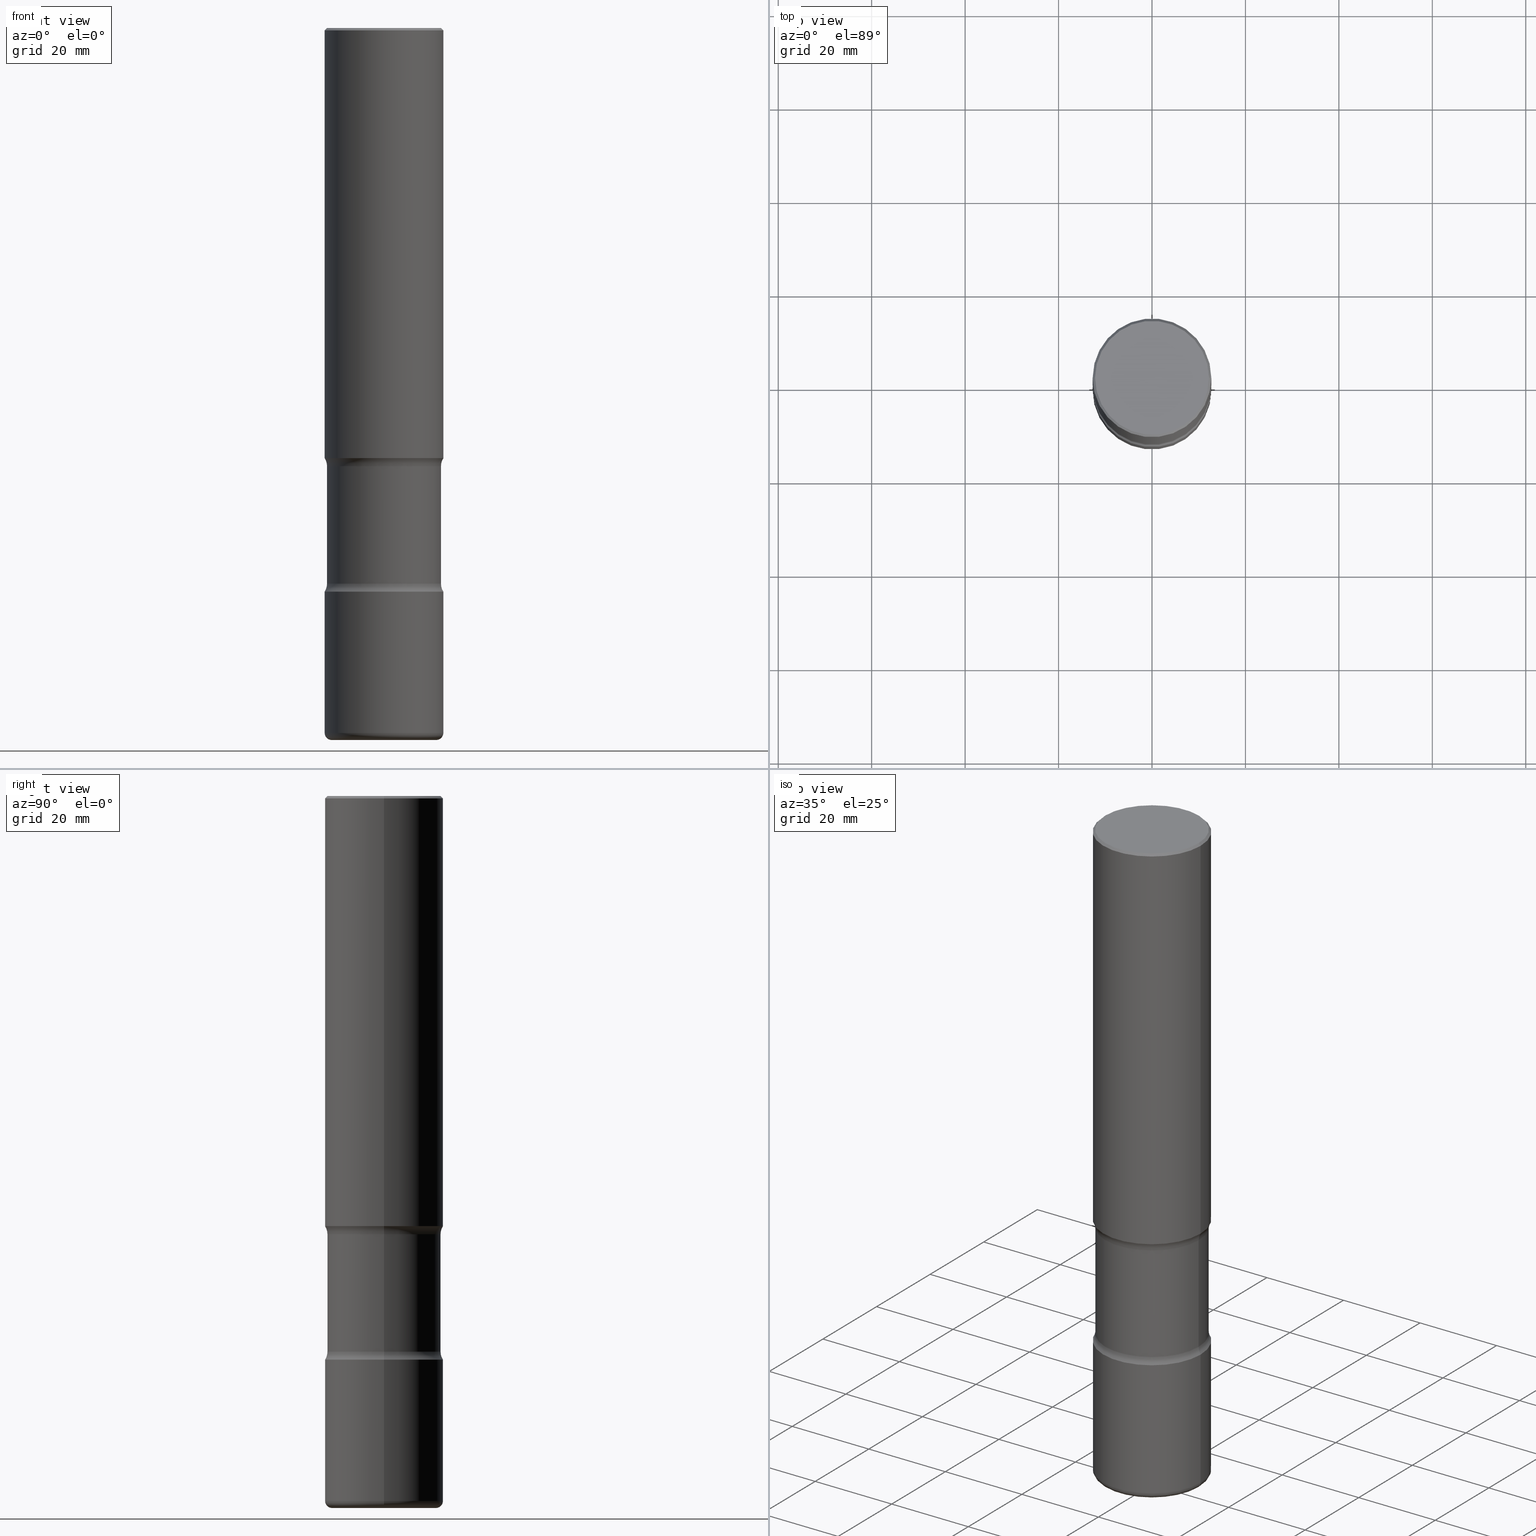
[diagram: canonical four-view strip — front | top / right | iso, engineering-drawing reading convention]
A machine part, canonical four-view strip (front | top / right | iso — engineering-drawing reading convention). The complete STEP part file that produces these views, byte-faithful:
ISO-10303-21;
HEADER;
FILE_DESCRIPTION (( 'STEP AP203' ),
    '1' );
FILE_NAME ('32804.STEP',
    '2023-03-11T07:03:03',
    ( '' ),
    ( '' ),
    'SwSTEP 2.0',
    'SolidWorks 2022',
    '' );
FILE_SCHEMA (( 'CONFIG_CONTROL_DESIGN' ));
ENDSEC;

DATA;
#1 = PRODUCT ( '32804', '32804', '', ( #398 ) ) ;
#2 = DIRECTION ( 'NONE',  ( -2.438088387897960049E-29, 3.491481338843145188E-15, 1.000000000000000000 ) ) ;
#3 = CYLINDRICAL_SURFACE ( 'NONE', #522, 0.4799999999999998712 ) ;
#4 = DIRECTION ( 'NONE',  ( -1.000000000000000000, 6.982962677686269866E-15, 0.000000000000000000 ) ) ;
#5 = ORIENTED_EDGE ( 'NONE', *, *, #573, .T. ) ;
#6 = CARTESIAN_POINT ( 'NONE',  ( 1.463950775264360017E-28, -2.090133719920166986E-14, -5.986380899898219532 ) ) ;
#7 = UNCERTAINTY_MEASURE_WITH_UNIT (LENGTH_MEASURE( 1.000000000000000082E-05 ), #694, 'distance_accuracy_value', 'NONE');
#8 = AXIS2_PLACEMENT_3D ( 'NONE', #536, #666, #166 ) ;
#9 = FACE_OUTER_BOUND ( 'NONE', #521, .T. ) ;
#10 = ORIENTED_EDGE ( 'NONE', *, *, #464, .T. ) ;
#11 = CC_DESIGN_PERSON_AND_ORGANIZATION_ASSIGNMENT ( #260, #28, ( #767 ) ) ;
#12 = DIRECTION ( 'NONE',  ( -1.000000000000000000, 6.982962677686266711E-15, 0.000000000000000000 ) ) ;
#13 = DIRECTION ( 'NONE',  ( -1.000000000000000000, 6.982962677686266711E-15, -4.883557194083112901E-29 ) ) ;
#14 = ORIENTED_EDGE ( 'NONE', *, *, #598, .F. ) ;
#15 = CARTESIAN_POINT ( 'NONE',  ( 1.467281283711081958E-28, -2.094888803305887271E-14, -6.000000000000000888 ) ) ;
#16 = ORIENTED_EDGE ( 'NONE', *, *, #340, .F. ) ;
#17 = FACE_OUTER_BOUND ( 'NONE', #574, .T. ) ;
#18 = EDGE_CURVE ( 'NONE', #211, #139, #303, .T. ) ;
#19 = CIRCLE ( 'NONE', #605, 0.4799999999999998157 ) ;
#20 = PERSON_AND_ORGANIZATION ( #769, #643 ) ;
#21 = EDGE_LOOP ( 'NONE', ( #402, #567, #328, #118 ) ) ;
#22 = CARTESIAN_POINT ( 'NONE',  ( -0.4799999999999999267, -1.299591048851595473E-14, -4.682176700168747985 ) ) ;
#23 = VERTEX_POINT ( 'NONE', #797 ) ;
#24 = CARTESIAN_POINT ( 'NONE',  ( 1.463950775264360017E-28, -2.090133719920166986E-14, -5.986380899898219532 ) ) ;
#25 = DIRECTION ( 'NONE',  ( -2.445468806185136597E-29, 3.491481338843145583E-15, 1.000000000000000000 ) ) ;
#26 = CIRCLE ( 'NONE', #743, 0.1250000000000001110 ) ;
#27 = ADVANCED_FACE ( 'NONE', ( #154 ), #164, .T. ) ;
#28 = PERSON_AND_ORGANIZATION_ROLE ( 'design_supplier' ) ;
#29 = EDGE_LOOP ( 'NONE', ( #129, #148, #123 ) ) ;
#30 = AXIS2_PLACEMENT_3D ( 'NONE', #563, #740, #105 ) ;
#31 = ORIENTED_EDGE ( 'NONE', *, *, #644, .T. ) ;
#32 = AXIS2_PLACEMENT_3D ( 'NONE', #119, #76, #179 ) ;
#33 = FACE_OUTER_BOUND ( 'NONE', #481, .T. ) ;
#34 = LOCAL_TIME ( 2, 3, 3.000000000000000000, #392 ) ;
#35 = ORIENTED_EDGE ( 'NONE', *, *, #533, .T. ) ;
#36 = FACE_BOUND ( 'NONE', #300, .T. ) ;
#37 = TOROIDAL_SURFACE ( 'NONE', #561, 0.6049999999999999822, 0.1250000000000000278 ) ;
#38 = DIRECTION ( 'NONE',  ( -2.445468806185136597E-29, 3.491481338843145583E-15, 1.000000000000000000 ) ) ;
#39 = EDGE_CURVE ( 'NONE', #792, #455, #149, .T. ) ;
#40 = PRODUCT_RELATED_PRODUCT_CATEGORY ( 'detail', '', ( #1 ) ) ;
#41 = CARTESIAN_POINT ( 'NONE',  ( 0.4400000000000000022, -2.381190273091024584E-14, -5.940000000000000391 ) ) ;
#42 = AXIS2_PLACEMENT_3D ( 'NONE', #443, #727, #351 ) ;
#43 = AXIS2_PLACEMENT_3D ( 'NONE', #259, #510, #65 ) ;
#44 = FACE_OUTER_BOUND ( 'NONE', #509, .T. ) ;
#45 = CARTESIAN_POINT ( 'NONE',  ( -0.6049999999999999822, -1.212304015380516982E-14, -4.682176700168747985 ) ) ;
#46 = ORIENTED_EDGE ( 'NONE', *, *, #278, .F. ) ;
#47 = EDGE_CURVE ( 'NONE', #505, #469, #634, .T. ) ;
#48 = ORIENTED_EDGE ( 'NONE', *, *, #682, .F. ) ;
#49 = EDGE_CURVE ( 'NONE', #469, #318, #614, .T. ) ;
#50 = TOROIDAL_SURFACE ( 'NONE', #577, 0.6049999999999999822, 0.1250000000000000278 ) ;
#51 = FACE_OUTER_BOUND ( 'NONE', #306, .T. ) ;
#52 = DIRECTION ( 'NONE',  ( 1.000000000000000000, -6.982962677686266711E-15, 0.000000000000000000 ) ) ;
#53 = LINE ( 'NONE', #370, #310 ) ;
#54 = VERTEX_POINT ( 'NONE', #160 ) ;
#55 = EDGE_CURVE ( 'NONE', #273, #332, #264, .T. ) ;
#56 = CIRCLE ( 'NONE', #347, 0.1250000000000000278 ) ;
#57 = AXIS2_PLACEMENT_3D ( 'NONE', #441, #311, #646 ) ;
#58 = FACE_OUTER_BOUND ( 'NONE', #612, .T. ) ;
#59 = PRODUCT_DEFINITION_SHAPE ( 'NONE', 'NONE',  #326 ) ;
#60 = ORIENTED_EDGE ( 'NONE', *, *, #545, .T. ) ;
#61 = DIRECTION ( 'NONE',  ( 2.438088387897960049E-29, -3.491481338843145188E-15, -1.000000000000000000 ) ) ;
#62 = DIRECTION ( 'NONE',  ( -2.445468806185136597E-29, 3.491481338843145583E-15, 1.000000000000000000 ) ) ;
#63 = CARTESIAN_POINT ( 'NONE',  ( 0.5000000000000000000, -1.608686885219216995E-14, -3.625000000000000888 ) ) ;
#64 = ORIENTED_EDGE ( 'NONE', *, *, #601, .T. ) ;
#65 = DIRECTION ( 'NONE',  ( 1.000000000000000000, -6.982962677686266711E-15, 4.876176775795935793E-29 ) ) ;
#66 = AXIS2_PLACEMENT_3D ( 'NONE', #156, #667, #671 ) ;
#67 = CARTESIAN_POINT ( 'NONE',  ( 0.6049999999999999822, -2.057242499380555159E-14, -4.682176700168747985 ) ) ;
#68 = EDGE_LOOP ( 'NONE', ( #772, #593 ) ) ;
#69 = DIRECTION ( 'NONE',  ( -0.9993908270190957621, 6.856857904024558837E-15, -0.03489949670250019204 ) ) ;
#70 = CARTESIAN_POINT ( 'NONE',  ( -0.4799999999999998712, -1.754951511391225995E-14, -5.986380899898219532 ) ) ;
#71 = VECTOR ( 'NONE', #69, 39.37007874015748143 ) ;
#72 = CARTESIAN_POINT ( 'NONE',  ( 1.145011706530952997E-28, -1.634773257380536149E-14, -4.682176700168747985 ) ) ;
#73 = ORIENTED_EDGE ( 'NONE', *, *, #167, .T. ) ;
#74 = LINE ( 'NONE', #183, #474 ) ;
#75 = ORIENTED_EDGE ( 'NONE', *, *, #274, .T. ) ;
#76 = DIRECTION ( 'NONE',  ( -2.445468806185136597E-29, 3.491481338843145583E-15, 1.000000000000000000 ) ) ;
#77 = PERSON_AND_ORGANIZATION ( #769, #643 ) ;
#78 = VERTEX_POINT ( 'NONE', #63 ) ;
#79 = DIRECTION ( 'NONE',  ( 2.438088387897960049E-29, -3.491481338843145188E-15, -1.000000000000000000 ) ) ;
#80 = ADVANCED_FACE ( 'NONE', ( #497 ), #333, .F. ) ;
#81 = VECTOR ( 'NONE', #796, 39.37007874015748143 ) ;
#82 = AXIS2_PLACEMENT_3D ( 'NONE', #24, #235, #4 ) ;
#83 = SHAPE_DEFINITION_REPRESENTATION ( #59, #519 ) ;
#84 = ORIENTED_EDGE ( 'NONE', *, *, #457, .F. ) ;
#85 = DIRECTION ( 'NONE',  ( -2.445468806185136597E-29, 3.491481338843145583E-15, 1.000000000000000000 ) ) ;
#86 = EDGE_CURVE ( 'NONE', #211, #468, #414, .T. ) ;
#87 = CARTESIAN_POINT ( 'NONE',  ( -0.4999999999999997224, 3.421651712066268085E-15, -0.02000000000000010797 ) ) ;
#88 = CALENDAR_DATE ( 2023, 11, 3 ) ;
#89 = ORIENTED_EDGE ( 'NONE', *, *, #539, .F. ) ;
#90 = CYLINDRICAL_SURFACE ( 'NONE', #223, 0.4799999999999998712 ) ;
#91 = AXIS2_PLACEMENT_3D ( 'NONE', #722, #25, #142 ) ;
#92 = COORDINATED_UNIVERSAL_TIME_OFFSET ( 5, 0, .BEHIND. ) ;
#93 = ORIENTED_EDGE ( 'NONE', *, *, #611, .T. ) ;
#94 = CARTESIAN_POINT ( 'NONE',  ( -0.5000000000000000000, 3.552713678800500929E-15, -2.459467545127452891E-29 ) ) ;
#95 = VERTEX_POINT ( 'NONE', #438 ) ;
#96 = AXIS2_PLACEMENT_3D ( 'NONE', #15, #255, #130 ) ;
#97 = CARTESIAN_POINT ( 'NONE',  ( -0.5000000000000000000, -9.103906174505904815E-15, -3.625000000000000888 ) ) ;
#98 = CC_DESIGN_SECURITY_CLASSIFICATION ( #135, ( #767 ) ) ;
#99 = DIRECTION ( 'NONE',  ( -2.438088387897960049E-29, 3.491481338843145188E-15, 1.000000000000000000 ) ) ;
#100 = ORIENTED_EDGE ( 'NONE', *, *, #530, .T. ) ;
#101 = DIRECTION ( 'NONE',  ( 1.000000000000000000, -6.982962677686265922E-15, 4.876176775795935793E-29 ) ) ;
#102 = DIRECTION ( 'NONE',  ( 1.000000000000000000, -6.982962677686265133E-15, 0.000000000000000000 ) ) ;
#103 = AXIS2_PLACEMENT_3D ( 'NONE', #622, #231, #757 ) ;
#104 = CARTESIAN_POINT ( 'NONE',  ( 4.890937612370299433E-31, -6.982962677686328587E-17, -0.02000000000000010797 ) ) ;
#105 = DIRECTION ( 'NONE',  ( -1.000000000000000000, 7.105427357600993970E-15, 0.000000000000000000 ) ) ;
#106 = ORIENTED_EDGE ( 'NONE', *, *, #573, .F. ) ;
#107 = AXIS2_PLACEMENT_3D ( 'NONE', #104, #346, #604 ) ;
#108 = CARTESIAN_POINT ( 'NONE',  ( 0.6049999999999998712, -1.704402492765776342E-14, -3.692823299831254236 ) ) ;
#109 = CARTESIAN_POINT ( 'NONE',  ( 8.864824422421122405E-29, -1.265661985330640574E-14, -3.625000000000000888 ) ) ;
#110 = ADVANCED_FACE ( 'NONE', ( #58 ), #181, .F. ) ;
#111 = LINE ( 'NONE', #626, #684 ) ;
#112 = EDGE_LOOP ( 'NONE', ( #182, #678 ) ) ;
#113 = DIRECTION ( 'NONE',  ( 1.000000000000000000, -6.982962677686263555E-15, 4.883557194083111780E-29 ) ) ;
#114 = CYLINDRICAL_SURFACE ( 'NONE', #672, 0.4799999999999998712 ) ;
#115 = ORIENTED_EDGE ( 'NONE', *, *, #717, .T. ) ;
#116 = DIRECTION ( 'NONE',  ( 0.7071067811865476838, -7.319954787623257623E-15, -0.7071067811865473507 ) ) ;
#117 = FACE_OUTER_BOUND ( 'NONE', #654, .T. ) ;
#118 = ORIENTED_EDGE ( 'NONE', *, *, #682, .T. ) ;
#119 = CARTESIAN_POINT ( 'NONE',  ( 1.452608470873971255E-28, -2.073939915272828597E-14, -5.940000000000000391 ) ) ;
#120 = CIRCLE ( 'NONE', #528, 0.5000000000000000000 ) ;
#121 = DIRECTION ( 'NONE',  ( -2.445468806185136597E-29, 3.491481338843145583E-15, 1.000000000000000000 ) ) ;
#122 = CARTESIAN_POINT ( 'NONE',  ( -0.4799999999999999267, -1.298447506143066159E-14, -4.682176700168747985 ) ) ;
#123 = ORIENTED_EDGE ( 'NONE', *, *, #717, .F. ) ;
#124 = FACE_OUTER_BOUND ( 'NONE', #112, .T. ) ;
#125 = CARTESIAN_POINT ( 'NONE',  ( 9.030684186490993510E-29, -1.289342363900598922E-14, -3.692823299831254236 ) ) ;
#126 = AXIS2_PLACEMENT_3D ( 'NONE', #41, #282, #221 ) ;
#127 = ORIENTED_EDGE ( 'NONE', *, *, #254, .F. ) ;
#128 = CYLINDRICAL_SURFACE ( 'NONE', #43, 0.5000000000000000000 ) ;
#129 = ORIENTED_EDGE ( 'NONE', *, *, #359, .F. ) ;
#130 = DIRECTION ( 'NONE',  ( 1.000000000000000000, -6.982962677686267499E-15, 0.000000000000000000 ) ) ;
#131 = FACE_OUTER_BOUND ( 'NONE', #676, .T. ) ;
#132 = CIRCLE ( 'NONE', #408, 0.5000000000000000000 ) ;
#133 = CONICAL_SURFACE ( 'NONE', #594, 1127.411546571505596, 1.535889741755010807 ) ;
#134 = ADVANCED_FACE ( 'NONE', ( #504 ), #728, .F. ) ;
#135 = SECURITY_CLASSIFICATION ( '', '', #197 ) ;
#136 = FACE_OUTER_BOUND ( 'NONE', #29, .T. ) ;
#137 = DIRECTION ( 'NONE',  ( 2.438088387897960049E-29, -3.491481338843145188E-15, -1.000000000000000000 ) ) ;
#138 = COORDINATED_UNIVERSAL_TIME_OFFSET ( 5, 0, .BEHIND. ) ;
#139 = VERTEX_POINT ( 'NONE', #122 ) ;
#140 = CC_DESIGN_PERSON_AND_ORGANIZATION_ASSIGNMENT ( #20, #515, ( #767 ) ) ;
#141 = AXIS2_PLACEMENT_3D ( 'NONE', #803, #491, #240 ) ;
#142 = DIRECTION ( 'NONE',  ( 1.000000000000000000, -6.982962677686266711E-15, 0.000000000000000000 ) ) ;
#143 = EDGE_CURVE ( 'NONE', #78, #277, #478, .T. ) ;
#144 = EDGE_LOOP ( 'NONE', ( #421, #339, #152, #758 ) ) ;
#145 = PERSON_AND_ORGANIZATION ( #769, #643 ) ;
#146 = ORIENTED_EDGE ( 'NONE', *, *, #413, .F. ) ;
#147 = COORDINATED_UNIVERSAL_TIME_OFFSET ( 5, 0, .BEHIND. ) ;
#148 = ORIENTED_EDGE ( 'NONE', *, *, #661, .T. ) ;
#149 = CIRCLE ( 'NONE', #287, 0.1250000000000000278 ) ;
#150 = ADVANCED_FACE ( 'NONE', ( #565 ), #587, .T. ) ;
#151 = DIRECTION ( 'NONE',  ( 2.445468806185136597E-29, -3.491481338843145583E-15, -1.000000000000000000 ) ) ;
#152 = ORIENTED_EDGE ( 'NONE', *, *, #49, .T. ) ;
#153 = PLANE ( 'NONE',  #655 ) ;
#154 = FACE_OUTER_BOUND ( 'NONE', #699, .T. ) ;
#155 = CIRCLE ( 'NONE', #8, 0.4799999999999999267 ) ;
#156 = CARTESIAN_POINT ( 'NONE',  ( 1.467281283711081958E-28, -2.094888803305887271E-14, -6.000000000000000888 ) ) ;
#157 = ADVANCED_FACE ( 'NONE', ( #9 ), #246, .T. ) ;
#158 = DIRECTION ( 'NONE',  ( 2.445468806185136597E-29, -3.491481338843145583E-15, -1.000000000000000000 ) ) ;
#159 = CLOSED_SHELL ( 'NONE', ( #27, #631, #617, #786, #110, #157 ) ) ;
#160 = CARTESIAN_POINT ( 'NONE',  ( -0.4799999999999995937, 3.386736898677836436E-15, 1.280553747027767124E-17 ) ) ;
#161 = ADVANCED_FACE ( 'NONE', ( #309 ), #564, .F. ) ;
#162 = DIRECTION ( 'NONE',  ( -2.445468806185136597E-29, 3.491481338843145583E-15, 1.000000000000000000 ) ) ;
#163 = DIRECTION ( 'NONE',  ( 1.000000000000000000, -6.982962677686265922E-15, 0.000000000000000000 ) ) ;
#164 = CYLINDRICAL_SURFACE ( 'NONE', #546, 0.4999999999999998335 ) ;
#165 = AXIS2_PLACEMENT_3D ( 'NONE', #479, #283, #542 ) ;
#166 = DIRECTION ( 'NONE',  ( -1.000000000000000000, 6.982962677686265133E-15, 0.000000000000000000 ) ) ;
#167 = EDGE_CURVE ( 'NONE', #332, #224, #314, .T. ) ;
#168 = CARTESIAN_POINT ( 'NONE',  ( 0.5000000000000000000, -2.007601769834807675E-14, -4.750000000000000000 ) ) ;
#169 = EDGE_LOOP ( 'NONE', ( #10, #578, #748, #531 ) ) ;
#170 = DIRECTION ( 'NONE',  ( -1.000000000000000000, 6.982962677686266711E-15, 0.000000000000000000 ) ) ;
#171 = CIRCLE ( 'NONE', #374, 0.5000000000000000000 ) ;
#172 = CARTESIAN_POINT ( 'NONE',  ( 8.864824422421122405E-29, -1.265661985330640574E-14, -3.625000000000000888 ) ) ;
#173 = DIRECTION ( 'NONE',  ( 1.000000000000000000, -6.982962677686266711E-15, 0.000000000000000000 ) ) ;
#174 = MANIFOLD_SOLID_BREP ( 'Body-Move/Copy2[2]', #159 ) ;
#175 = DIRECTION ( 'NONE',  ( 1.000000000000000000, -6.982962677686265922E-15, 4.876176775795935793E-29 ) ) ;
#176 = ADVANCED_FACE ( 'NONE', ( #117 ), #3, .T. ) ;
#177 = ORIENTED_EDGE ( 'NONE', *, *, #664, .F. ) ;
#178 = CC_DESIGN_DATE_AND_TIME_ASSIGNMENT ( #656, #320, ( #135 ) ) ;
#179 = DIRECTION ( 'NONE',  ( 1.000000000000000000, -6.982962677686270655E-15, 4.883557194083114583E-29 ) ) ;
#180 = AXIS2_PLACEMENT_3D ( 'NONE', #701, #391, #576 ) ;
#181 = PLANE ( 'NONE',  #719 ) ;
#182 = ORIENTED_EDGE ( 'NONE', *, *, #216, .T. ) ;
#183 = CARTESIAN_POINT ( 'NONE',  ( 0.4999999999999998335, -3.491481338843132566E-15, 2.438088387897967336E-29 ) ) ;
#184 = CARTESIAN_POINT ( 'NONE',  ( 0.4400000000000000022, -2.402139161124082943E-14, -6.000000000000000888 ) ) ;
#185 = DIRECTION ( 'NONE',  ( 1.000000000000000000, -6.982962677686267499E-15, 4.876176775795936353E-29 ) ) ;
#186 = EDGE_LOOP ( 'NONE', ( #372, #715, #253, #84 ) ) ;
#187 = EDGE_CURVE ( 'NONE', #268, #277, #416, .T. ) ;
#188 = FACE_OUTER_BOUND ( 'NONE', #726, .T. ) ;
#189 = EDGE_CURVE ( 'NONE', #426, #352, #343, .T. ) ;
#190 = ORIENTED_EDGE ( 'NONE', *, *, #192, .F. ) ;
#191 = DIRECTION ( 'NONE',  ( 1.000000000000000000, -6.982962677686266711E-15, 0.000000000000000000 ) ) ;
#192 = EDGE_CURVE ( 'NONE', #607, #792, #632, .T. ) ;
#193 = AXIS2_PLACEMENT_3D ( 'NONE', #637, #79, #403 ) ;
#194 = CC_DESIGN_PERSON_AND_ORGANIZATION_ASSIGNMENT ( #145, #648, ( #1 ) ) ;
#195 = EDGE_LOOP ( 'NONE', ( #636, #321, #215, #275 ) ) ;
#196 = CARTESIAN_POINT ( 'NONE',  ( 0.5000000000000000000, -3.491481338843133355E-15, 2.438088387897967896E-29 ) ) ;
#197 = SECURITY_CLASSIFICATION_LEVEL ( 'unclassified' ) ;
#198 = ORIENTED_EDGE ( 'NONE', *, *, #394, .T. ) ;
#199 = DIRECTION ( 'NONE',  ( -1.000000000000000000, 6.982962677686266711E-15, -4.883557194083112901E-29 ) ) ;
#200 = AXIS2_PLACEMENT_3D ( 'NONE', #379, #362, #693 ) ;
#201 = APPROVAL_DATE_TIME ( #524, #429 ) ;
#202 = VERTEX_POINT ( 'NONE', #679 ) ;
#203 = CARTESIAN_POINT ( 'NONE',  ( 9.030684186490993510E-29, -1.289342363900598922E-14, -3.692823299831254236 ) ) ;
#204 = LINE ( 'NONE', #225, #742 ) ;
#205 = CIRCLE ( 'NONE', #219, 0.1250000000000000278 ) ;
#206 = APPROVAL_ROLE ( '' ) ;
#207 = ORIENTED_EDGE ( 'NONE', *, *, #39, .F. ) ;
#208 = FACE_OUTER_BOUND ( 'NONE', #559, .T. ) ;
#209 = DIRECTION ( 'NONE',  ( -1.000000000000000000, 7.105427357600994759E-15, 0.000000000000000000 ) ) ;
#210 = APPLICATION_PROTOCOL_DEFINITION ( 'international standard', 'config_control_design', 1994, #437 ) ;
#211 = VERTEX_POINT ( 'NONE', #619 ) ;
#212 = PLANE ( 'NONE',  #327 ) ;
#213 = FACE_OUTER_BOUND ( 'NONE', #710, .T. ) ;
#214 = ADVANCED_FACE ( 'NONE', ( #213 ), #90, .T. ) ;
#215 = ORIENTED_EDGE ( 'NONE', *, *, #507, .T. ) ;
#216 = EDGE_CURVE ( 'NONE', #412, #499, #444, .T. ) ;
#217 = AXIS2_PLACEMENT_3D ( 'NONE', #280, #151, #540 ) ;
#218 = ORIENTED_EDGE ( 'NONE', *, *, #644, .F. ) ;
#219 = AXIS2_PLACEMENT_3D ( 'NONE', #705, #308, #571 ) ;
#220 = DIRECTION ( 'NONE',  ( 2.445468806185136597E-29, -3.491481338843145583E-15, -1.000000000000000000 ) ) ;
#221 = DIRECTION ( 'NONE',  ( 1.000000000000000000, -6.982962677686270655E-15, 0.000000000000000000 ) ) ;
#222 = AXIS2_PLACEMENT_3D ( 'NONE', #371, #487, #185 ) ;
#223 = AXIS2_PLACEMENT_3D ( 'NONE', #396, #471, #652 ) ;
#224 = VERTEX_POINT ( 'NONE', #87 ) ;
#225 = CARTESIAN_POINT ( 'NONE',  ( -0.4999999999999997224, 3.421651712066268085E-15, -0.02000000000000010797 ) ) ;
#226 = CC_DESIGN_DATE_AND_TIME_ASSIGNMENT ( #659, #272, ( #326 ) ) ;
#227 = ORIENTED_EDGE ( 'NONE', *, *, #394, .F. ) ;
#228 = AXIS2_PLACEMENT_3D ( 'NONE', #423, #677, #52 ) ;
#229 = APPROVAL_PERSON_ORGANIZATION ( #467, #369, #257 ) ;
#230 = CARTESIAN_POINT ( 'NONE',  ( 1.161597682937940108E-28, -1.658453635950494339E-14, -4.750000000000000000 ) ) ;
#231 = DIRECTION ( 'NONE',  ( -2.445468806185136597E-29, 3.491481338843145583E-15, 1.000000000000000000 ) ) ;
#232 = ADVANCED_FACE ( 'NONE', ( #390, #36 ), #153, .F. ) ;
#233 = AXIS2_PLACEMENT_3D ( 'NONE', #544, #795, #375 ) ;
#234 = DIRECTION ( 'NONE',  ( 0.9993908270190957621, -6.978169709227539121E-15, -0.03489949670250019204 ) ) ;
#235 = DIRECTION ( 'NONE',  ( 2.445468806185136597E-29, -3.491481338843145583E-15, -1.000000000000000000 ) ) ;
#236 = ORIENTED_EDGE ( 'NONE', *, *, #86, .F. ) ;
#237 = CARTESIAN_POINT ( 'NONE',  ( 9.030684186490993510E-29, -1.289342363900598922E-14, -3.692823299831254236 ) ) ;
#238 = EDGE_CURVE ( 'NONE', #139, #463, #289, .T. ) ;
#239 = DIRECTION ( 'NONE',  ( 1.000000000000000000, -6.982962677686266711E-15, 4.876036955247133327E-29 ) ) ;
#240 = DIRECTION ( 'NONE',  ( 1.000000000000000000, -6.982962677686272233E-15, 0.000000000000000000 ) ) ;
#241 = EDGE_LOOP ( 'NONE', ( #399, #100 ) ) ;
#242 = CIRCLE ( 'NONE', #734, 0.4999999999999997224 ) ;
#243 = CARTESIAN_POINT ( 'NONE',  ( 1.161597682937940108E-28, -1.658453635950494339E-14, -4.750000000000000000 ) ) ;
#244 = TOROIDAL_SURFACE ( 'NONE', #180, 0.6049999999999999822, 0.1250000000000000278 ) ;
#245 =( GEOMETRIC_REPRESENTATION_CONTEXT ( 3 ) GLOBAL_UNCERTAINTY_ASSIGNED_CONTEXT ( ( #7 ) ) GLOBAL_UNIT_ASSIGNED_CONTEXT ( ( #694, #558, #384 ) ) REPRESENTATION_CONTEXT ( 'NONE', 'WORKASPACE' ) );
#246 = CYLINDRICAL_SURFACE ( 'NONE', #222, 0.4999999999999998335 ) ;
#247 = ADVANCED_FACE ( 'NONE', ( #591 ), #50, .F. ) ;
#248 = VERTEX_POINT ( 'NONE', #517 ) ;
#249 = EDGE_CURVE ( 'NONE', #316, #499, #341, .T. ) ;
#250 = DIRECTION ( 'NONE',  ( -2.445468806185136597E-29, 3.491481338843145583E-15, 1.000000000000000000 ) ) ;
#251 = DIRECTION ( 'NONE',  ( -2.445468806185136877E-29, 3.491481338843145188E-15, 1.000000000000000000 ) ) ;
#252 = AXIS2_PLACEMENT_3D ( 'NONE', #125, #688, #13 ) ;
#253 = ORIENTED_EDGE ( 'NONE', *, *, #611, .F. ) ;
#254 = EDGE_CURVE ( 'NONE', #318, #412, #599, .T. ) ;
#255 = DIRECTION ( 'NONE',  ( -2.445468806185136597E-29, 3.491481338843145583E-15, 1.000000000000000000 ) ) ;
#256 = DIRECTION ( 'NONE',  ( 2.445468806185136877E-29, -3.491481338843145188E-15, -1.000000000000000000 ) ) ;
#257 = APPROVAL_ROLE ( '' ) ;
#258 = ORIENTED_EDGE ( 'NONE', *, *, #254, .T. ) ;
#259 = CARTESIAN_POINT ( 'NONE',  ( 0.000000000000000000, 0.000000000000000000, 0.000000000000000000 ) ) ;
#260 = PERSON_AND_ORGANIZATION ( #769, #643 ) ;
#261 = ORIENTED_EDGE ( 'NONE', *, *, #278, .T. ) ;
#262 = DIRECTION ( 'NONE',  ( 0.000000000000000000, 0.000000000000000000, 1.000000000000000000 ) ) ;
#263 = ORIENTED_EDGE ( 'NONE', *, *, #187, .T. ) ;
#264 = CIRCLE ( 'NONE', #233, 0.5000000000000000000 ) ;
#265 = VECTOR ( 'NONE', #773, 39.37007874015748143 ) ;
#266 = DIRECTION ( 'NONE',  ( -1.000000000000000000, 6.982962677686266711E-15, 0.000000000000000000 ) ) ;
#267 = APPROVAL_STATUS ( 'not_yet_approved' ) ;
#268 = VERTEX_POINT ( 'NONE', #456 ) ;
#269 = CARTESIAN_POINT ( 'NONE',  ( 1.145011706530952997E-28, -1.634773257380536149E-14, -4.682176700168747985 ) ) ;
#270 = CIRCLE ( 'NONE', #750, 0.5000000000000000000 ) ;
#271 = CC_DESIGN_APPROVAL ( #429, ( #326 ) ) ;
#272 = DATE_TIME_ROLE ( 'creation_date' ) ;
#273 = VERTEX_POINT ( 'NONE', #708 ) ;
#274 = EDGE_CURVE ( 'NONE', #277, #78, #171, .T. ) ;
#275 = ORIENTED_EDGE ( 'NONE', *, *, #324, .F. ) ;
#276 = VECTOR ( 'NONE', #325, 39.37007874015748143 ) ;
#277 = VERTEX_POINT ( 'NONE', #778 ) ;
#278 = EDGE_CURVE ( 'NONE', #54, #224, #204, .T. ) ;
#279 = AXIS2_PLACEMENT_3D ( 'NONE', #675, #633, #501 ) ;
#280 = CARTESIAN_POINT ( 'NONE',  ( 1.145011706530952997E-28, -1.634773257380536149E-14, -4.682176700168747985 ) ) ;
#281 = CONICAL_SURFACE ( 'NONE', #465, 0.4999999999999997224, 0.7853981633974485010 ) ;
#282 = DIRECTION ( 'NONE',  ( -6.982962677686266711E-15, -1.000000000000000000, 3.491481338843145583E-15 ) ) ;
#283 = DIRECTION ( 'NONE',  ( 2.445468806185136597E-29, -3.491481338843145583E-15, -1.000000000000000000 ) ) ;
#284 = CARTESIAN_POINT ( 'NONE',  ( 8.864824422421122405E-29, -1.265661985330640574E-14, -3.625000000000000888 ) ) ;
#285 = DIRECTION ( 'NONE',  ( -2.445468806185136597E-29, 3.491481338843145583E-15, 1.000000000000000000 ) ) ;
#286 = DIRECTION ( 'NONE',  ( -2.445468806185136597E-29, 3.491481338843145583E-15, 1.000000000000000000 ) ) ;
#287 = AXIS2_PLACEMENT_3D ( 'NONE', #603, #788, #475 ) ;
#288 = CARTESIAN_POINT ( 'NONE',  ( -0.5000000000000000000, -1.510925407731611217E-14, -4.750000000000000000 ) ) ;
#289 = CIRCLE ( 'NONE', #415, 0.1250000000000000278 ) ;
#290 = FACE_OUTER_BOUND ( 'NONE', #241, .T. ) ;
#291 = ORIENTED_EDGE ( 'NONE', *, *, #638, .T. ) ;
#292 = PLANE ( 'NONE',  #618 ) ;
#293 = CARTESIAN_POINT ( 'NONE',  ( 1.452608470873971255E-28, -2.073939915272828597E-14, -5.940000000000000391 ) ) ;
#294 = DIRECTION ( 'NONE',  ( 1.000000000000000000, -6.982962677686261189E-15, 0.000000000000000000 ) ) ;
#295 = ORIENTED_EDGE ( 'NONE', *, *, #453, .F. ) ;
#296 = TOROIDAL_SURFACE ( 'NONE', #511, 0.6049999999999998712, 0.1250000000000001110 ) ;
#297 = ADVANCED_FACE ( 'NONE', ( #44 ), #37, .F. ) ;
#298 = CARTESIAN_POINT ( 'NONE',  ( 0.4799999999999999267, -1.982777848556320013E-14, -4.682176700168747985 ) ) ;
#299 = CARTESIAN_POINT ( 'NONE',  ( 9.030684186490993510E-29, -1.289342363900598922E-14, -3.692823299831254236 ) ) ;
#300 = EDGE_LOOP ( 'NONE', ( #585, #115 ) ) ;
#301 = FACE_OUTER_BOUND ( 'NONE', #144, .T. ) ;
#302 = EDGE_CURVE ( 'NONE', #95, #78, #26, .T. ) ;
#303 = CIRCLE ( 'NONE', #489, 0.4799999999999999267 ) ;
#304 = CARTESIAN_POINT ( 'NONE',  ( -0.4799999999999998712, -9.246014721657926556E-15, -3.625000000000000888 ) ) ;
#305 = DIRECTION ( 'NONE',  ( -2.445468806185136597E-29, 3.491481338843145583E-15, 1.000000000000000000 ) ) ;
#306 = EDGE_LOOP ( 'NONE', ( #623, #357 ) ) ;
#307 = VECTOR ( 'NONE', #251, 39.37007874015748143 ) ;
#308 = DIRECTION ( 'NONE',  ( -6.982962677686266711E-15, -1.000000000000000000, 3.491481338843145583E-15 ) ) ;
#309 = FACE_OUTER_BOUND ( 'NONE', #393, .T. ) ;
#310 = VECTOR ( 'NONE', #116, 39.37007874015748143 ) ;
#311 = DIRECTION ( 'NONE',  ( 2.445468806185136597E-29, -3.491481338843145583E-15, -1.000000000000000000 ) ) ;
#312 = CIRCLE ( 'NONE', #107, 0.4999999999999997224 ) ;
#313 = CC_DESIGN_APPROVAL ( #369, ( #135 ) ) ;
#314 = LINE ( 'NONE', #572, #307 ) ;
#315 = ADVANCED_FACE ( 'NONE', ( #51 ), #292, .F. ) ;
#316 = VERTEX_POINT ( 'NONE', #602 ) ;
#317 = DIRECTION ( 'NONE',  ( 1.000000000000000000, -6.982962677686266711E-15, 0.000000000000000000 ) ) ;
#318 = VERTEX_POINT ( 'NONE', #535 ) ;
#319 = DIRECTION ( 'NONE',  ( 2.445468806185136597E-29, -3.491481338843145583E-15, -1.000000000000000000 ) ) ;
#320 = DATE_TIME_ROLE ( 'classification_date' ) ;
#321 = ORIENTED_EDGE ( 'NONE', *, *, #340, .T. ) ;
#322 = DIRECTION ( 'NONE',  ( -2.445468806185136597E-29, 3.491481338843145583E-15, 1.000000000000000000 ) ) ;
#323 = CIRCLE ( 'NONE', #790, 0.4799999999999995937 ) ;
#324 = EDGE_CURVE ( 'NONE', #352, #785, #789, .T. ) ;
#325 = DIRECTION ( 'NONE',  ( -2.445468806185136877E-29, 3.491481338843145188E-15, 1.000000000000000000 ) ) ;
#326 = PRODUCT_DEFINITION ( 'UNKNOWN', '', #767, #739 ) ;
#327 = AXIS2_PLACEMENT_3D ( 'NONE', #407, #460, #662 ) ;
#328 = ORIENTED_EDGE ( 'NONE', *, *, #86, .T. ) ;
#329 = FACE_OUTER_BOUND ( 'NONE', #195, .T. ) ;
#330 = CARTESIAN_POINT ( 'NONE',  ( -0.6049999999999999822, -1.204894902245675549E-14, -4.682176700168747985 ) ) ;
#331 = APPROVAL_ROLE ( '' ) ;
#332 = VERTEX_POINT ( 'NONE', #596 ) ;
#333 = TOROIDAL_SURFACE ( 'NONE', #252, 0.6049999999999998712, 0.1250000000000001110 ) ;
#334 = CARTESIAN_POINT ( 'NONE',  ( 1.467281283711081958E-28, -2.094888803305887271E-14, -6.000000000000000888 ) ) ;
#335 = EDGE_CURVE ( 'NONE', #139, #455, #543, .T. ) ;
#336 = APPROVAL_DATE_TIME ( #592, #369 ) ;
#337 = ORIENTED_EDGE ( 'NONE', *, *, #539, .T. ) ;
#338 = AXIS2_PLACEMENT_3D ( 'NONE', #768, #435, #378 ) ;
#339 = ORIENTED_EDGE ( 'NONE', *, *, #47, .T. ) ;
#340 = EDGE_CURVE ( 'NONE', #95, #268, #685, .T. ) ;
#341 = LINE ( 'NONE', #94, #276 ) ;
#342 = ORIENTED_EDGE ( 'NONE', *, *, #453, .T. ) ;
#343 = CIRCLE ( 'NONE', #804, 0.1250000000000000278 ) ;
#344 = DIRECTION ( 'NONE',  ( 1.000000000000000000, -6.982962677686270655E-15, 0.000000000000000000 ) ) ;
#345 = ORIENTED_EDGE ( 'NONE', *, *, #482, .F. ) ;
#346 = DIRECTION ( 'NONE',  ( -2.445468806185136597E-29, 3.491481338843145583E-15, 1.000000000000000000 ) ) ;
#347 = AXIS2_PLACEMENT_3D ( 'NONE', #45, #746, #294 ) ;
#348 = DIRECTION ( 'NONE',  ( 1.000000000000000000, -6.982962677686265133E-15, 0.000000000000000000 ) ) ;
#349 = AXIS2_PLACEMENT_3D ( 'NONE', #488, #744, #173 ) ;
#350 = ORIENTED_EDGE ( 'NONE', *, *, #238, .T. ) ;
#351 = DIRECTION ( 'NONE',  ( 1.000000000000000000, -6.982962677686266711E-15, 0.000000000000000000 ) ) ;
#352 = VERTEX_POINT ( 'NONE', #298 ) ;
#353 = DIRECTION ( 'NONE',  ( -1.000000000000000000, 6.860497997771523674E-15, 0.000000000000000000 ) ) ;
#354 = AXIS2_PLACEMENT_3D ( 'NONE', #72, #635, #681 ) ;
#355 = AXIS2_PLACEMENT_3D ( 'NONE', #109, #609, #551 ) ;
#356 = PLANE ( 'NONE',  #381 ) ;
#357 = ORIENTED_EDGE ( 'NONE', *, *, #451, .T. ) ;
#358 = EDGE_CURVE ( 'NONE', #663, #224, #242, .T. ) ;
#359 = EDGE_CURVE ( 'NONE', #600, #23, #111, .T. ) ;
#360 = CARTESIAN_POINT ( 'NONE',  ( 1.524049141974463819E-28, -1.139402517154283716E-14, -4.750000000000000000 ) ) ;
#361 = DIRECTION ( 'NONE',  ( -2.445468806185136597E-29, 3.491481338843145583E-15, 1.000000000000000000 ) ) ;
#362 = DIRECTION ( 'NONE',  ( 2.445468806185136597E-29, -3.491481338843145583E-15, -1.000000000000000000 ) ) ;
#363 = AXIS2_PLACEMENT_3D ( 'NONE', #556, #686, #680 ) ;
#364 = APPLICATION_PROTOCOL_DEFINITION ( 'international standard', 'config_control_design', 1994, #466 ) ;
#365 = ADVANCED_FACE ( 'NONE', ( #736 ), #114, .T. ) ;
#366 = VERTEX_POINT ( 'NONE', #606 ) ;
#367 = CIRCLE ( 'NONE', #349, 0.5000000000000000000 ) ;
#368 = DIRECTION ( 'NONE',  ( 1.000000000000000000, -6.982962677686266711E-15, 4.876036955247133327E-29 ) ) ;
#369 = APPROVAL ( #714, 'UNSPECIFIED' ) ;
#370 = CARTESIAN_POINT ( 'NONE',  ( 0.4999999999999997224, -3.500078625662627502E-15, -0.02000000000000010797 ) ) ;
#371 = CARTESIAN_POINT ( 'NONE',  ( 0.000000000000000000, 0.000000000000000000, 0.000000000000000000 ) ) ;
#372 = ORIENTED_EDGE ( 'NONE', *, *, #18, .T. ) ;
#373 = PLANE ( 'NONE',  #193 ) ;
#374 = AXIS2_PLACEMENT_3D ( 'NONE', #523, #461, #266 ) ;
#375 = DIRECTION ( 'NONE',  ( 1.000000000000000000, -6.982962677686266711E-15, 0.000000000000000000 ) ) ;
#376 = DIRECTION ( 'NONE',  ( 1.000000000000000000, -6.982962677686266711E-15, 0.000000000000000000 ) ) ;
#377 = EDGE_LOOP ( 'NONE', ( #525, #766, #337, #406 ) ) ;
#378 = DIRECTION ( 'NONE',  ( 1.000000000000000000, -6.982962677686267499E-15, 0.000000000000000000 ) ) ;
#379 = CARTESIAN_POINT ( 'NONE',  ( 8.864824422421122405E-29, -1.265661985330640574E-14, -3.625000000000000888 ) ) ;
#380 = ORIENTED_EDGE ( 'NONE', *, *, #187, .F. ) ;
#381 = AXIS2_PLACEMENT_3D ( 'NONE', #284, #2, #419 ) ;
#382 = PLANE ( 'NONE',  #448 ) ;
#383 = CIRCLE ( 'NONE', #165, 0.5000000000000000000 ) ;
#384 =( NAMED_UNIT ( * ) SI_UNIT ( $, .STERADIAN. ) SOLID_ANGLE_UNIT ( ) );
#385 = ORIENTED_EDGE ( 'NONE', *, *, #759, .F. ) ;
#386 = DIRECTION ( 'NONE',  ( 1.000000000000000000, -6.982962677686266711E-15, 0.000000000000000000 ) ) ;
#387 = DIRECTION ( 'NONE',  ( -1.000000000000000000, 6.982962677686265922E-15, -4.876176775795935793E-29 ) ) ;
#388 = ORIENTED_EDGE ( 'NONE', *, *, #413, .T. ) ;
#389 = EDGE_CURVE ( 'NONE', #202, #663, #53, .T. ) ;
#390 = FACE_OUTER_BOUND ( 'NONE', #68, .T. ) ;
#391 = DIRECTION ( 'NONE',  ( 2.445468806185136597E-29, -3.491481338843145583E-15, -1.000000000000000000 ) ) ;
#392 = COORDINATED_UNIVERSAL_TIME_OFFSET ( 5, 0, .BEHIND. ) ;
#393 = EDGE_LOOP ( 'NONE', ( #207, #190, #472, #93 ) ) ;
#394 = EDGE_CURVE ( 'NONE', #366, #785, #56, .T. ) ;
#395 = CIRCLE ( 'NONE', #42, 0.5000000000000000000 ) ;
#396 = CARTESIAN_POINT ( 'NONE',  ( 1.463950775264360017E-28, -2.090133719920166986E-14, -5.986380899898219532 ) ) ;
#397 = LOCAL_TIME ( 2, 3, 3.000000000000000000, #138 ) ;
#398 = MECHANICAL_CONTEXT ( 'NONE', #466, 'mechanical' ) ;
#399 = ORIENTED_EDGE ( 'NONE', *, *, #192, .T. ) ;
#400 = EDGE_CURVE ( 'NONE', #316, #318, #765, .T. ) ;
#401 = PERSON_AND_ORGANIZATION ( #769, #643 ) ;
#402 = ORIENTED_EDGE ( 'NONE', *, *, #238, .F. ) ;
#403 = DIRECTION ( 'NONE',  ( -1.000000000000000000, 6.982962677686265922E-15, -4.876176775795935793E-29 ) ) ;
#404 = EDGE_CURVE ( 'NONE', #505, #316, #527, .T. ) ;
#405 = PERSON_AND_ORGANIZATION ( #769, #643 ) ;
#406 = ORIENTED_EDGE ( 'NONE', *, *, #658, .F. ) ;
#407 = CARTESIAN_POINT ( 'NONE',  ( 3.351822085289404787E-15, 0.4799999999999995937, -1.669508273909557867E-15 ) ) ;
#408 = AXIS2_PLACEMENT_3D ( 'NONE', #230, #802, #170 ) ;
#409 = CIRCLE ( 'NONE', #570, 0.4799999999999995937 ) ;
#410 = APPROVAL_PERSON_ORGANIZATION ( #77, #580, #331 ) ;
#411 = ORIENTED_EDGE ( 'NONE', *, *, #167, .F. ) ;
#412 = VERTEX_POINT ( 'NONE', #168 ) ;
#413 = EDGE_CURVE ( 'NONE', #139, #211, #649, .T. ) ;
#414 = CIRCLE ( 'NONE', #774, 0.1250000000000000278 ) ;
#415 = AXIS2_PLACEMENT_3D ( 'NONE', #330, #512, #209 ) ;
#416 = CIRCLE ( 'NONE', #141, 0.1250000000000001110 ) ;
#417 = CARTESIAN_POINT ( 'NONE',  ( 8.864824422421122405E-29, -1.265661985330640574E-14, -3.625000000000000888 ) ) ;
#418 = ORIENTED_EDGE ( 'NONE', *, *, #799, .F. ) ;
#419 = DIRECTION ( 'NONE',  ( 1.000000000000000000, -6.982962677686265922E-15, 4.876176775795935793E-29 ) ) ;
#420 = VECTOR ( 'NONE', #256, 39.37007874015748143 ) ;
#421 = ORIENTED_EDGE ( 'NONE', *, *, #404, .F. ) ;
#422 = AXIS2_PLACEMENT_3D ( 'NONE', #771, #262, #520 ) ;
#423 = CARTESIAN_POINT ( 'NONE',  ( 9.030684186490993510E-29, -1.289342363900598922E-14, -3.692823299831254236 ) ) ;
#424 = ADVANCED_FACE ( 'NONE', ( #290 ), #356, .T. ) ;
#425 = DIRECTION ( 'NONE',  ( -2.445468806185136597E-29, 3.491481338843145583E-15, 1.000000000000000000 ) ) ;
#426 = VERTEX_POINT ( 'NONE', #794 ) ;
#427 = CARTESIAN_POINT ( 'NONE',  ( 1.452608470873971255E-28, -2.073939915272828597E-14, -5.940000000000000391 ) ) ;
#428 = CARTESIAN_POINT ( 'NONE',  ( 8.864824422421122405E-29, -1.265661985330640574E-14, -3.625000000000000888 ) ) ;
#429 = APPROVAL ( #720, 'UNSPECIFIED' ) ;
#430 = CARTESIAN_POINT ( 'NONE',  ( 0.5000000000000000000, -1.614810119214953752E-14, -3.625000000000000888 ) ) ;
#431 = DIRECTION ( 'NONE',  ( 6.860497997771531562E-15, 1.000000000000000000, -3.491481338843145583E-15 ) ) ;
#432 = CIRCLE ( 'NONE', #538, 0.5000000000000000000 ) ;
#433 = EDGE_LOOP ( 'NONE', ( #16, #440, #650, #380 ) ) ;
#434 = AXIS2_PLACEMENT_3D ( 'NONE', #777, #85, #526 ) ;
#435 = DIRECTION ( 'NONE',  ( -2.445468806185136597E-29, 3.491481338843145583E-15, 1.000000000000000000 ) ) ;
#436 = CC_DESIGN_APPROVAL ( #580, ( #767 ) ) ;
#437 = APPLICATION_CONTEXT ( 'configuration controlled 3d designs of mechanical parts and assemblies' ) ;
#438 = CARTESIAN_POINT ( 'NONE',  ( 0.4799999999999998157, -1.613666576506424596E-14, -3.692823299831254236 ) ) ;
#439 = DIRECTION ( 'NONE',  ( -2.445468806185136597E-29, 3.491481338843145583E-15, 1.000000000000000000 ) ) ;
#440 = ORIENTED_EDGE ( 'NONE', *, *, #302, .T. ) ;
#441 = CARTESIAN_POINT ( 'NONE',  ( 4.890937612370299433E-31, -6.982962677686328587E-17, -0.02000000000000010797 ) ) ;
#442 = CARTESIAN_POINT ( 'NONE',  ( -0.4400000000000000022, -1.750459273482111023E-14, -6.000000000000000888 ) ) ;
#443 = CARTESIAN_POINT ( 'NONE',  ( 8.864824422421122405E-29, -1.265661985330640574E-14, -3.625000000000000888 ) ) ;
#444 = CIRCLE ( 'NONE', #91, 0.5000000000000000000 ) ;
#445 = FACE_OUTER_BOUND ( 'NONE', #493, .T. ) ;
#446 = ORIENTED_EDGE ( 'NONE', *, *, #249, .T. ) ;
#447 = FACE_OUTER_BOUND ( 'NONE', #737, .T. ) ;
#448 = AXIS2_PLACEMENT_3D ( 'NONE', #494, #61, #568 ) ;
#449 = MANIFOLD_SOLID_BREP ( 'Body-Move/Copy2[1]', #630 ) ;
#450 = LOCAL_TIME ( 2, 3, 3.000000000000000000, #147 ) ;
#451 = EDGE_CURVE ( 'NONE', #426, #366, #132, .T. ) ;
#452 = MANIFOLD_SOLID_BREP ( 'Body-Move/Copy2[3]', #761 ) ;
#453 = EDGE_CURVE ( 'NONE', #54, #202, #323, .T. ) ;
#454 = COORDINATED_UNIVERSAL_TIME_OFFSET ( 5, 0, .BEHIND. ) ;
#455 = VERTEX_POINT ( 'NONE', #480 ) ;
#456 = CARTESIAN_POINT ( 'NONE',  ( -0.4799999999999998157, -9.541601553716582462E-15, -3.692823299831254236 ) ) ;
#457 = EDGE_CURVE ( 'NONE', #211, #248, #496, .T. ) ;
#458 = PERSON_AND_ORGANIZATION_ROLE ( 'classification_officer' ) ;
#459 = EDGE_LOOP ( 'NONE', ( #484, #502, #732, #227 ) ) ;
#460 = DIRECTION ( 'NONE',  ( 2.438088387897960049E-29, -3.491481338843145188E-15, -1.000000000000000000 ) ) ;
#461 = DIRECTION ( 'NONE',  ( 2.445468806185136597E-29, -3.491481338843145583E-15, -1.000000000000000000 ) ) ;
#462 = CALENDAR_DATE ( 2023, 11, 3 ) ;
#463 = VERTEX_POINT ( 'NONE', #731 ) ;
#464 = EDGE_CURVE ( 'NONE', #469, #505, #537, .T. ) ;
#465 = AXIS2_PLACEMENT_3D ( 'NONE', #683, #575, #560 ) ;
#466 = APPLICATION_CONTEXT ( 'configuration controlled 3d designs of mechanical parts and assemblies' ) ;
#467 = PERSON_AND_ORGANIZATION ( #769, #643 ) ;
#468 = VERTEX_POINT ( 'NONE', #702 ) ;
#469 = VERTEX_POINT ( 'NONE', #184 ) ;
#470 = CLOSED_SHELL ( 'NONE', ( #214, #247, #562, #80, #508, #315, #485, #798 ) ) ;
#471 = DIRECTION ( 'NONE',  ( 2.445468806185136597E-29, -3.491481338843145583E-15, -1.000000000000000000 ) ) ;
#472 = ORIENTED_EDGE ( 'NONE', *, *, #658, .T. ) ;
#473 = DIRECTION ( 'NONE',  ( -2.438088387897960049E-29, 3.491481338843145188E-15, 1.000000000000000000 ) ) ;
#474 = VECTOR ( 'NONE', #691, 39.37007874015748143 ) ;
#475 = DIRECTION ( 'NONE',  ( -1.000000000000000000, 7.105427357601001859E-15, 0.000000000000000000 ) ) ;
#476 = DIRECTION ( 'NONE',  ( -1.000000000000000000, 6.982962677686266711E-15, -4.883557194083112901E-29 ) ) ;
#477 = ORIENTED_EDGE ( 'NONE', *, *, #358, .T. ) ;
#478 = CIRCLE ( 'NONE', #200, 0.5000000000000000000 ) ;
#479 = CARTESIAN_POINT ( 'NONE',  ( 1.161597682937940108E-28, -1.658453635950494339E-14, -4.750000000000000000 ) ) ;
#480 = CARTESIAN_POINT ( 'NONE',  ( -0.4799999999999998157, -9.293362340931705846E-15, -3.692823299831254236 ) ) ;
#481 = EDGE_LOOP ( 'NONE', ( #712, #628, #258, #418 ) ) ;
#482 = EDGE_CURVE ( 'NONE', #332, #273, #395, .T. ) ;
#483 = CIRCLE ( 'NONE', #96, 0.3900000000000000133 ) ;
#484 = ORIENTED_EDGE ( 'NONE', *, *, #451, .F. ) ;
#485 = ADVANCED_FACE ( 'NONE', ( #610 ), #244, .F. ) ;
#486 = CARTESIAN_POINT ( 'NONE',  ( 4.890937612370299433E-31, -6.982962677686328587E-17, -0.02000000000000010797 ) ) ;
#487 = DIRECTION ( 'NONE',  ( -2.445468806185136597E-29, 3.491481338843145583E-15, 1.000000000000000000 ) ) ;
#488 = CARTESIAN_POINT ( 'NONE',  ( 8.864824422421122405E-29, -1.265661985330640574E-14, -3.625000000000000888 ) ) ;
#489 = AXIS2_PLACEMENT_3D ( 'NONE', #724, #38, #102 ) ;
#490 = DIRECTION ( 'NONE',  ( -2.445468806185136597E-29, 3.491481338843145583E-15, 1.000000000000000000 ) ) ;
#491 = DIRECTION ( 'NONE',  ( -6.982962677686266711E-15, -1.000000000000000000, 3.491481338843145583E-15 ) ) ;
#492 =( LENGTH_UNIT ( ) NAMED_UNIT ( * ) SI_UNIT ( $, .METRE. ) );
#493 = EDGE_LOOP ( 'NONE', ( #48, #707 ) ) ;
#494 = CARTESIAN_POINT ( 'NONE',  ( 1.524049141974463819E-28, -1.139402517154283716E-14, -4.750000000000000000 ) ) ;
#495 = CARTESIAN_POINT ( 'NONE',  ( 8.864824422421122405E-29, -1.265661985330640574E-14, -3.625000000000000888 ) ) ;
#496 = LINE ( 'NONE', #751, #81 ) ;
#497 = FACE_OUTER_BOUND ( 'NONE', #660, .T. ) ;
#498 = AXIS2_PLACEMENT_3D ( 'NONE', #629, #506, #191 ) ;
#499 = VERTEX_POINT ( 'NONE', #288 ) ;
#500 = CARTESIAN_POINT ( 'NONE',  ( -0.3900000000000009015, -1.822553258876122617E-14, -6.000000000000000888 ) ) ;
#501 = DIRECTION ( 'NONE',  ( 1.000000000000000000, -6.982962677686262766E-15, 0.000000000000000000 ) ) ;
#502 = ORIENTED_EDGE ( 'NONE', *, *, #189, .T. ) ;
#503 = CARTESIAN_POINT ( 'NONE',  ( 1.109178072087513407E-27, -1.583612324292467835E-13, -45.35645964005570363 ) ) ;
#504 = FACE_OUTER_BOUND ( 'NONE', #21, .T. ) ;
#505 = VERTEX_POINT ( 'NONE', #442 ) ;
#506 = DIRECTION ( 'NONE',  ( -2.445468806185136597E-29, 3.491481338843145583E-15, 1.000000000000000000 ) ) ;
#507 = EDGE_CURVE ( 'NONE', #268, #785, #697, .T. ) ;
#508 = ADVANCED_FACE ( 'NONE', ( #131 ), #764, .F. ) ;
#509 = EDGE_LOOP ( 'NONE', ( #146, #350, #754, #236 ) ) ;
#510 = DIRECTION ( 'NONE',  ( -2.445468806185136597E-29, 3.491481338843145583E-15, 1.000000000000000000 ) ) ;
#511 = AXIS2_PLACEMENT_3D ( 'NONE', #203, #322, #583 ) ;
#512 = DIRECTION ( 'NONE',  ( 7.105427357601001859E-15, 1.000000000000000000, -3.491481338843145583E-15 ) ) ;
#513 = FACE_OUTER_BOUND ( 'NONE', #516, .T. ) ;
#514 = CC_DESIGN_PERSON_AND_ORGANIZATION_ASSIGNMENT ( #401, #458, ( #135 ) ) ;
#515 = PERSON_AND_ORGANIZATION_ROLE ( 'creator' ) ;
#516 = EDGE_LOOP ( 'NONE', ( #589, #801, #385 ) ) ;
#517 = CARTESIAN_POINT ( 'NONE',  ( 0.4799999999999998157, -1.624524572429539598E-14, -3.692823299831254236 ) ) ;
#518 = ADVANCED_FACE ( 'NONE', ( #513 ), #713, .F. ) ;
#519 = ADVANCED_BREP_SHAPE_REPRESENTATION ( '32804', ( #449, #174, #452, #718, #422 ), #245 ) ;
#520 = DIRECTION ( 'NONE',  ( 1.000000000000000000, 0.000000000000000000, 0.000000000000000000 ) ) ;
#521 = EDGE_LOOP ( 'NONE', ( #411, #597, #31, #106 ) ) ;
#522 = AXIS2_PLACEMENT_3D ( 'NONE', #428, #305, #557 ) ;
#523 = CARTESIAN_POINT ( 'NONE',  ( 8.864824422421122405E-29, -1.265661985330640574E-14, -3.625000000000000888 ) ) ;
#524 = DATE_AND_TIME ( #88, #689 ) ;
#525 = ORIENTED_EDGE ( 'NONE', *, *, #530, .F. ) ;
#526 = DIRECTION ( 'NONE',  ( 1.000000000000000000, -6.982962677686266711E-15, 4.876176775795935793E-29 ) ) ;
#527 = CIRCLE ( 'NONE', #30, 0.05999999999999997696 ) ;
#528 = AXIS2_PLACEMENT_3D ( 'NONE', #293, #550, #344 ) ;
#529 = ORIENTED_EDGE ( 'NONE', *, *, #216, .F. ) ;
#530 = EDGE_CURVE ( 'NONE', #792, #607, #367, .T. ) ;
#531 = ORIENTED_EDGE ( 'NONE', *, *, #49, .F. ) ;
#532 = FACE_OUTER_BOUND ( 'NONE', #377, .T. ) ;
#533 = EDGE_CURVE ( 'NONE', #785, #352, #155, .T. ) ;
#534 = DIRECTION ( 'NONE',  ( 1.000000000000000000, -6.982962677686267499E-15, 4.876176775795936353E-29 ) ) ;
#535 = CARTESIAN_POINT ( 'NONE',  ( 0.5000000000000000000, -2.423088049157142248E-14, -5.940000000000000391 ) ) ;
#536 = CARTESIAN_POINT ( 'NONE',  ( 1.145011706530952997E-28, -1.634773257380536149E-14, -4.682176700168747985 ) ) ;
#537 = CIRCLE ( 'NONE', #279, 0.4400000000000000022 ) ;
#538 = AXIS2_PLACEMENT_3D ( 'NONE', #753, #439, #376 ) ;
#539 = EDGE_CURVE ( 'NONE', #455, #248, #735, .T. ) ;
#540 = DIRECTION ( 'NONE',  ( -1.000000000000000000, 6.982962677686265133E-15, 0.000000000000000000 ) ) ;
#541 = ORIENTED_EDGE ( 'NONE', *, *, #664, .T. ) ;
#542 = DIRECTION ( 'NONE',  ( -1.000000000000000000, 6.982962677686266711E-15, 0.000000000000000000 ) ) ;
#543 = LINE ( 'NONE', #304, #552 ) ;
#544 = CARTESIAN_POINT ( 'NONE',  ( 8.864824422421122405E-29, -1.265661985330640574E-14, -3.625000000000000888 ) ) ;
#545 = EDGE_CURVE ( 'NONE', #318, #316, #120, .T. ) ;
#546 = AXIS2_PLACEMENT_3D ( 'NONE', #729, #285, #534 ) ;
#547 = DIRECTION ( 'NONE',  ( 1.000000000000000000, -6.982962677686266711E-15, 0.000000000000000000 ) ) ;
#548 = ORIENTED_EDGE ( 'NONE', *, *, #533, .F. ) ;
#549 = DIRECTION ( 'NONE',  ( -0.7071067811865476838, 2.468850131082258638E-15, -0.7071067811865473507 ) ) ;
#550 = DIRECTION ( 'NONE',  ( -2.445468806185136597E-29, 3.491481338843145583E-15, 1.000000000000000000 ) ) ;
#551 = DIRECTION ( 'NONE',  ( 1.000000000000000000, -6.982962677686266711E-15, 0.000000000000000000 ) ) ;
#552 = VECTOR ( 'NONE', #615, 39.37007874015748143 ) ;
#553 = CARTESIAN_POINT ( 'NONE',  ( 1.145011706530952997E-28, -1.634773257380536149E-14, -4.682176700168747985 ) ) ;
#554 = AXIS2_PLACEMENT_3D ( 'NONE', #495, #137, #387 ) ;
#555 = ORIENTED_EDGE ( 'NONE', *, *, #507, .F. ) ;
#556 = CARTESIAN_POINT ( 'NONE',  ( 9.030684186490993510E-29, -1.289342363900598922E-14, -3.692823299831254236 ) ) ;
#557 = DIRECTION ( 'NONE',  ( 1.000000000000000000, -6.982962677686265922E-15, 0.000000000000000000 ) ) ;
#558 =( NAMED_UNIT ( * ) PLANE_ANGLE_UNIT ( ) SI_UNIT ( $, .RADIAN. ) );
#559 = EDGE_LOOP ( 'NONE', ( #342, #64 ) ) ;
#560 = DIRECTION ( 'NONE',  ( -1.000000000000000000, 6.982962677686266711E-15, 0.000000000000000000 ) ) ;
#561 = AXIS2_PLACEMENT_3D ( 'NONE', #608, #286, #113 ) ;
#562 = ADVANCED_FACE ( 'NONE', ( #669 ), #584, .F. ) ;
#563 = CARTESIAN_POINT ( 'NONE',  ( -0.4400000000000000022, -1.761301111538384237E-14, -5.940000000000000391 ) ) ;
#564 = TOROIDAL_SURFACE ( 'NONE', #668, 0.6049999999999998712, 0.1250000000000001110 ) ;
#565 = FACE_OUTER_BOUND ( 'NONE', #169, .T. ) ;
#566 = LENGTH_MEASURE_WITH_UNIT ( LENGTH_MEASURE( 0.02539999999999999897 ), #492 );
#567 = ORIENTED_EDGE ( 'NONE', *, *, #18, .F. ) ;
#568 = DIRECTION ( 'NONE',  ( -1.000000000000000000, 6.982962677686265922E-15, -4.876176775795935793E-29 ) ) ;
#569 = DIRECTION ( 'NONE',  ( -2.445468806185136597E-29, 3.491481338843145583E-15, 1.000000000000000000 ) ) ;
#570 = AXIS2_PLACEMENT_3D ( 'NONE', #730, #162, #368 ) ;
#571 = DIRECTION ( 'NONE',  ( 1.000000000000000000, -6.982962677686261189E-15, 0.000000000000000000 ) ) ;
#572 = CARTESIAN_POINT ( 'NONE',  ( -0.4999999999999998335, 3.552713678800499746E-15, -2.459467545127452330E-29 ) ) ;
#573 = EDGE_CURVE ( 'NONE', #224, #663, #312, .T. ) ;
#574 = EDGE_LOOP ( 'NONE', ( #60, #446, #529, #127 ) ) ;
#575 = DIRECTION ( 'NONE',  ( 2.445468806185136597E-29, -3.491481338843145583E-15, -1.000000000000000000 ) ) ;
#576 = DIRECTION ( 'NONE',  ( -1.000000000000000000, 6.982962677686266711E-15, -4.883557194083112901E-29 ) ) ;
#577 = AXIS2_PLACEMENT_3D ( 'NONE', #269, #711, #199 ) ;
#578 = ORIENTED_EDGE ( 'NONE', *, *, #404, .T. ) ;
#579 = DIRECTION ( 'NONE',  ( -1.000000000000000000, 6.982962677686266711E-15, 0.000000000000000000 ) ) ;
#580 = APPROVAL ( #267, 'UNSPECIFIED' ) ;
#581 = PERSON_AND_ORGANIZATION_ROLE ( 'creator' ) ;
#582 = ORIENTED_EDGE ( 'NONE', *, *, #457, .T. ) ;
#583 = DIRECTION ( 'NONE',  ( 1.000000000000000000, -6.982962677686265133E-15, 4.883557194083112901E-29 ) ) ;
#584 = TOROIDAL_SURFACE ( 'NONE', #725, 0.6049999999999998712, 0.1250000000000001110 ) ;
#585 = ORIENTED_EDGE ( 'NONE', *, *, #759, .T. ) ;
#586 = CYLINDRICAL_SURFACE ( 'NONE', #82, 0.4799999999999998712 ) ;
#587 = TOROIDAL_SURFACE ( 'NONE', #103, 0.4400000000000000022, 0.05999999999999994227 ) ;
#588 = APPROVAL_DATE_TIME ( #709, #580 ) ;
#589 = ORIENTED_EDGE ( 'NONE', *, *, #661, .F. ) ;
#590 = CYLINDRICAL_SURFACE ( 'NONE', #434, 0.5000000000000000000 ) ;
#591 = FACE_OUTER_BOUND ( 'NONE', #459, .T. ) ;
#592 = DATE_AND_TIME ( #784, #674 ) ;
#593 = ORIENTED_EDGE ( 'NONE', *, *, #47, .F. ) ;
#594 = AXIS2_PLACEMENT_3D ( 'NONE', #503, #319, #579 ) ;
#595 = APPROVAL_PERSON_ORGANIZATION ( #405, #429, #206 ) ;
#596 = CARTESIAN_POINT ( 'NONE',  ( -0.5000000000000000000, -2.810511061241133592E-15, -3.625000000000000888 ) ) ;
#597 = ORIENTED_EDGE ( 'NONE', *, *, #482, .T. ) ;
#598 = EDGE_CURVE ( 'NONE', #366, #426, #383, .T. ) ;
#599 = LINE ( 'NONE', #196, #265 ) ;
#600 = VERTEX_POINT ( 'NONE', #793 ) ;
#601 = EDGE_CURVE ( 'NONE', #202, #54, #409, .T. ) ;
#602 = CARTESIAN_POINT ( 'NONE',  ( -0.5000000000000000000, -1.718668547392778504E-14, -5.940000000000000391 ) ) ;
#603 = CARTESIAN_POINT ( 'NONE',  ( -0.6049999999999998712, -8.594640087657383223E-15, -3.692823299831254236 ) ) ;
#604 = DIRECTION ( 'NONE',  ( 1.000000000000000000, -6.982962677686266711E-15, 0.000000000000000000 ) ) ;
#605 = AXIS2_PLACEMENT_3D ( 'NONE', #237, #250, #386 ) ;
#606 = CARTESIAN_POINT ( 'NONE',  ( -0.5000000000000000000, -1.309305502066180846E-14, -4.750000000000000000 ) ) ;
#607 = VERTEX_POINT ( 'NONE', #430 ) ;
#608 = CARTESIAN_POINT ( 'NONE',  ( 1.145011706530952997E-28, -1.634773257380536149E-14, -4.682176700168747985 ) ) ;
#609 = DIRECTION ( 'NONE',  ( -2.445468806185136597E-29, 3.491481338843145583E-15, 1.000000000000000000 ) ) ;
#610 = FACE_OUTER_BOUND ( 'NONE', #690, .T. ) ;
#611 = EDGE_CURVE ( 'NONE', #248, #455, #19, .T. ) ;
#612 = EDGE_LOOP ( 'NONE', ( #642, #345 ) ) ;
#613 = DIMENSIONAL_EXPONENTS ( 1.000000000000000000, 0.000000000000000000, 0.000000000000000000, 0.000000000000000000, 0.000000000000000000, 0.000000000000000000, 0.000000000000000000 ) ;
#614 = CIRCLE ( 'NONE', #126, 0.05999999999999997696 ) ;
#615 = DIRECTION ( 'NONE',  ( -2.445468806185136877E-29, 3.491481338843145188E-15, 1.000000000000000000 ) ) ;
#616 = ORIENTED_EDGE ( 'NONE', *, *, #55, .T. ) ;
#617 = ADVANCED_FACE ( 'NONE', ( #188 ), #281, .T. ) ;
#618 = AXIS2_PLACEMENT_3D ( 'NONE', #360, #473, #101 ) ;
#619 = CARTESIAN_POINT ( 'NONE',  ( 0.4799999999999999267, -1.969955465909476825E-14, -4.682176700168747985 ) ) ;
#620 = CARTESIAN_POINT ( 'NONE',  ( -3.131554243005659264E-46, 4.471029511141341874E-32, 1.280553747030123384E-17 ) ) ;
#621 = CIRCLE ( 'NONE', #673, 0.4799999999999998157 ) ;
#622 = CARTESIAN_POINT ( 'NONE',  ( 1.452608470873971255E-28, -2.073939915272828597E-14, -5.940000000000000391 ) ) ;
#623 = ORIENTED_EDGE ( 'NONE', *, *, #598, .T. ) ;
#624 = ADVANCED_FACE ( 'NONE', ( #445 ), #382, .T. ) ;
#625 = CARTESIAN_POINT ( 'NONE',  ( 9.030684186490993510E-29, -1.289342363900598922E-14, -3.692823299831254236 ) ) ;
#626 = CARTESIAN_POINT ( 'NONE',  ( 1.463950775264360017E-28, -2.090133719920166986E-14, -5.986380899898219532 ) ) ;
#627 = DIRECTION ( 'NONE',  ( -1.000000000000000000, 6.860497997771528407E-15, 0.000000000000000000 ) ) ;
#628 = ORIENTED_EDGE ( 'NONE', *, *, #400, .T. ) ;
#629 = CARTESIAN_POINT ( 'NONE',  ( 1.161597682937940108E-28, -1.658453635950494339E-14, -4.750000000000000000 ) ) ;
#630 = CLOSED_SHELL ( 'NONE', ( #518, #755, #150, #232, #696, #783, #770, #745 ) ) ;
#631 = ADVANCED_FACE ( 'NONE', ( #447 ), #800, .T. ) ;
#632 = CIRCLE ( 'NONE', #355, 0.5000000000000000000 ) ;
#633 = DIRECTION ( 'NONE',  ( -2.445468806185136597E-29, 3.491481338843145583E-15, 1.000000000000000000 ) ) ;
#634 = CIRCLE ( 'NONE', #66, 0.4400000000000000022 ) ;
#635 = DIRECTION ( 'NONE',  ( -2.445468806185136597E-29, 3.491481338843145583E-15, 1.000000000000000000 ) ) ;
#636 = ORIENTED_EDGE ( 'NONE', *, *, #638, .F. ) ;
#637 = CARTESIAN_POINT ( 'NONE',  ( 1.524049141974463819E-28, -1.139402517154283716E-14, -4.750000000000000000 ) ) ;
#638 = EDGE_CURVE ( 'NONE', #95, #352, #806, .T. ) ;
#639 = DIRECTION ( 'NONE',  ( 1.000000000000000000, -6.982962677686261189E-15, 0.000000000000000000 ) ) ;
#640 = AXIS2_PLACEMENT_3D ( 'NONE', #553, #361, #348 ) ;
#641 = TOROIDAL_SURFACE ( 'NONE', #32, 0.4400000000000000022, 0.05999999999999994227 ) ;
#642 = ORIENTED_EDGE ( 'NONE', *, *, #55, .F. ) ;
#643 = ORGANIZATION ( 'UNSPECIFIED', 'UNSPECIFIED', '' ) ;
#644 = EDGE_CURVE ( 'NONE', #273, #663, #74, .T. ) ;
#645 = VERTEX_POINT ( 'NONE', #500 ) ;
#646 = DIRECTION ( 'NONE',  ( -1.000000000000000000, 6.982962677686266711E-15, 0.000000000000000000 ) ) ;
#647 = ORIENTED_EDGE ( 'NONE', *, *, #143, .F. ) ;
#648 = PERSON_AND_ORGANIZATION_ROLE ( 'design_owner' ) ;
#649 = CIRCLE ( 'NONE', #640, 0.4799999999999999267 ) ;
#650 = ORIENTED_EDGE ( 'NONE', *, *, #143, .T. ) ;
#651 = VECTOR ( 'NONE', #756, 39.37007874015748143 ) ;
#652 = DIRECTION ( 'NONE',  ( -1.000000000000000000, 6.982962677686269866E-15, 0.000000000000000000 ) ) ;
#653 = CALENDAR_DATE ( 2023, 11, 3 ) ;
#654 = EDGE_LOOP ( 'NONE', ( #776, #388, #582, #89 ) ) ;
#655 = AXIS2_PLACEMENT_3D ( 'NONE', #334, #99, #716 ) ;
#656 = DATE_AND_TIME ( #779, #34 ) ;
#657 = ORIENTED_EDGE ( 'NONE', *, *, #274, .F. ) ;
#658 = EDGE_CURVE ( 'NONE', #607, #248, #205, .T. ) ;
#659 = DATE_AND_TIME ( #653, #397 ) ;
#660 = EDGE_LOOP ( 'NONE', ( #781, #177, #263, #75 ) ) ;
#661 = EDGE_CURVE ( 'NONE', #600, #645, #760, .T. ) ;
#662 = DIRECTION ( 'NONE',  ( -1.000000000000000000, 6.982962677686265922E-15, -4.876176775795935793E-29 ) ) ;
#663 = VERTEX_POINT ( 'NONE', #700 ) ;
#664 = EDGE_CURVE ( 'NONE', #268, #95, #621, .T. ) ;
#665 = DIRECTION ( 'NONE',  ( 6.860497997771531562E-15, 1.000000000000000000, -3.491481338843145583E-15 ) ) ;
#666 = DIRECTION ( 'NONE',  ( 2.445468806185136597E-29, -3.491481338843145583E-15, -1.000000000000000000 ) ) ;
#667 = DIRECTION ( 'NONE',  ( -2.445468806185136597E-29, 3.491481338843145583E-15, 1.000000000000000000 ) ) ;
#668 = AXIS2_PLACEMENT_3D ( 'NONE', #299, #569, #698 ) ;
#669 = FACE_OUTER_BOUND ( 'NONE', #433, .T. ) ;
#670 = DIRECTION ( 'NONE',  ( 1.000000000000000000, -6.982962677686270655E-15, 0.000000000000000000 ) ) ;
#671 = DIRECTION ( 'NONE',  ( 1.000000000000000000, -6.982962677686262766E-15, 0.000000000000000000 ) ) ;
#672 = AXIS2_PLACEMENT_3D ( 'NONE', #417, #62, #163 ) ;
#673 = AXIS2_PLACEMENT_3D ( 'NONE', #625, #763, #12 ) ;
#674 = LOCAL_TIME ( 2, 3, 3.000000000000000000, #92 ) ;
#675 = CARTESIAN_POINT ( 'NONE',  ( 1.467281283711081958E-28, -2.094888803305887271E-14, -6.000000000000000888 ) ) ;
#676 = EDGE_LOOP ( 'NONE', ( #657, #647 ) ) ;
#677 = DIRECTION ( 'NONE',  ( -2.445468806185136597E-29, 3.491481338843145583E-15, 1.000000000000000000 ) ) ;
#678 = ORIENTED_EDGE ( 'NONE', *, *, #799, .T. ) ;
#679 = CARTESIAN_POINT ( 'NONE',  ( 0.4799999999999995937, -3.396558832296480127E-15, 1.280553747032483033E-17 ) ) ;
#680 = DIRECTION ( 'NONE',  ( -1.000000000000000000, 6.982962677686266711E-15, 0.000000000000000000 ) ) ;
#681 = DIRECTION ( 'NONE',  ( 1.000000000000000000, -6.982962677686263555E-15, 4.883557194083111780E-29 ) ) ;
#682 = EDGE_CURVE ( 'NONE', #468, #463, #270, .T. ) ;
#683 = CARTESIAN_POINT ( 'NONE',  ( 4.890937612370299433E-31, -6.982962677686328587E-17, -0.02000000000000010797 ) ) ;
#684 = VECTOR ( 'NONE', #234, 39.37007874015748143 ) ;
#685 = CIRCLE ( 'NONE', #363, 0.4799999999999998157 ) ;
#686 = DIRECTION ( 'NONE',  ( 2.445468806185136597E-29, -3.491481338843145583E-15, -1.000000000000000000 ) ) ;
#687 = CIRCLE ( 'NONE', #498, 0.5000000000000000000 ) ;
#688 = DIRECTION ( 'NONE',  ( 2.445468806185136597E-29, -3.491481338843145583E-15, -1.000000000000000000 ) ) ;
#689 = LOCAL_TIME ( 2, 3, 3.000000000000000000, #454 ) ;
#690 = EDGE_LOOP ( 'NONE', ( #805, #14, #198, #35 ) ) ;
#691 = DIRECTION ( 'NONE',  ( -2.445468806185136877E-29, 3.491481338843145188E-15, 1.000000000000000000 ) ) ;
#692 = CARTESIAN_POINT ( 'NONE',  ( 1.109178072087513407E-27, -1.583612324292467835E-13, -45.35645964005570363 ) ) ;
#693 = DIRECTION ( 'NONE',  ( -1.000000000000000000, 6.982962677686266711E-15, 0.000000000000000000 ) ) ;
#694 =( CONVERSION_BASED_UNIT ( 'INCH', #566 ) LENGTH_UNIT ( ) NAMED_UNIT ( #613 ) );
#695 = DIRECTION ( 'NONE',  ( -2.445468806185136597E-29, 3.491481338843145583E-15, 1.000000000000000000 ) ) ;
#696 = ADVANCED_FACE ( 'NONE', ( #301 ), #641, .T. ) ;
#697 = LINE ( 'NONE', #70, #420 ) ;
#698 = DIRECTION ( 'NONE',  ( 1.000000000000000000, -6.982962677686265133E-15, 4.883557194083112901E-29 ) ) ;
#699 = EDGE_LOOP ( 'NONE', ( #616, #73, #721, #218 ) ) ;
#700 = CARTESIAN_POINT ( 'NONE',  ( 0.4999999999999997224, -3.500078625662627502E-15, -0.02000000000000010797 ) ) ;
#701 = CARTESIAN_POINT ( 'NONE',  ( 1.145011706530952997E-28, -1.634773257380536149E-14, -4.682176700168747985 ) ) ;
#702 = CARTESIAN_POINT ( 'NONE',  ( 0.5000000000000000000, -2.007601769834807044E-14, -4.750000000000000000 ) ) ;
#703 = CIRCLE ( 'NONE', #338, 0.3900000000000000133 ) ;
#704 = ORIENTED_EDGE ( 'NONE', *, *, #389, .F. ) ;
#705 = CARTESIAN_POINT ( 'NONE',  ( 0.6049999999999998712, -1.711811605900617932E-14, -3.692823299831254236 ) ) ;
#706 = PERSON_AND_ORGANIZATION ( #769, #643 ) ;
#707 = ORIENTED_EDGE ( 'NONE', *, *, #738, .F. ) ;
#708 = CARTESIAN_POINT ( 'NONE',  ( 0.5000000000000000000, -1.614810119214954068E-14, -3.625000000000000888 ) ) ;
#709 = DATE_AND_TIME ( #462, #450 ) ;
#710 = EDGE_LOOP ( 'NONE', ( #541, #291, #548, #555 ) ) ;
#711 = DIRECTION ( 'NONE',  ( 2.445468806185136597E-29, -3.491481338843145583E-15, -1.000000000000000000 ) ) ;
#712 = ORIENTED_EDGE ( 'NONE', *, *, #249, .F. ) ;
#713 = CONICAL_SURFACE ( 'NONE', #782, 1127.411546571505596, 1.535889741755010807 ) ;
#714 = APPROVAL_STATUS ( 'not_yet_approved' ) ;
#715 = ORIENTED_EDGE ( 'NONE', *, *, #335, .T. ) ;
#716 = DIRECTION ( 'NONE',  ( 1.000000000000000000, -6.982962677686265922E-15, 4.876176775795935793E-29 ) ) ;
#717 = EDGE_CURVE ( 'NONE', #23, #645, #483, .T. ) ;
#718 = MANIFOLD_SOLID_BREP ( 'Body-Move/Copy2[4]', #470 ) ;
#719 = AXIS2_PLACEMENT_3D ( 'NONE', #172, #752, #175 ) ;
#720 = APPROVAL_STATUS ( 'not_yet_approved' ) ;
#721 = ORIENTED_EDGE ( 'NONE', *, *, #358, .F. ) ;
#722 = CARTESIAN_POINT ( 'NONE',  ( 1.161597682937940108E-28, -1.658453635950494339E-14, -4.750000000000000000 ) ) ;
#723 = CC_DESIGN_PERSON_AND_ORGANIZATION_ASSIGNMENT ( #706, #581, ( #326 ) ) ;
#724 = CARTESIAN_POINT ( 'NONE',  ( 1.145011706530952997E-28, -1.634773257380536149E-14, -4.682176700168747985 ) ) ;
#725 = AXIS2_PLACEMENT_3D ( 'NONE', #791, #220, #476 ) ;
#726 = EDGE_LOOP ( 'NONE', ( #704, #295, #261, #5 ) ) ;
#727 = DIRECTION ( 'NONE',  ( -2.445468806185136597E-29, 3.491481338843145583E-15, 1.000000000000000000 ) ) ;
#728 = TOROIDAL_SURFACE ( 'NONE', #354, 0.6049999999999999822, 0.1250000000000000278 ) ;
#729 = CARTESIAN_POINT ( 'NONE',  ( 0.000000000000000000, 0.000000000000000000, 0.000000000000000000 ) ) ;
#730 = CARTESIAN_POINT ( 'NONE',  ( -3.131554243005659264E-46, 4.471029511141341874E-32, 1.280553747030123384E-17 ) ) ;
#731 = CARTESIAN_POINT ( 'NONE',  ( -0.5000000000000000000, -1.303182268070444246E-14, -4.750000000000000000 ) ) ;
#732 = ORIENTED_EDGE ( 'NONE', *, *, #324, .T. ) ;
#733 = DIRECTION ( 'NONE',  ( -1.000000000000000000, 6.982962677686266711E-15, 0.000000000000000000 ) ) ;
#734 = AXIS2_PLACEMENT_3D ( 'NONE', #486, #121, #547 ) ;
#735 = CIRCLE ( 'NONE', #228, 0.4799999999999998157 ) ;
#736 = FACE_OUTER_BOUND ( 'NONE', #186, .T. ) ;
#737 = EDGE_LOOP ( 'NONE', ( #787, #762, #477, #46 ) ) ;
#738 = EDGE_CURVE ( 'NONE', #463, #468, #687, .T. ) ;
#739 = DESIGN_CONTEXT ( 'detailed design', #437, 'design' ) ;
#740 = DIRECTION ( 'NONE',  ( 7.105427357601001859E-15, 1.000000000000000000, -3.491481338843145583E-15 ) ) ;
#741 = DIRECTION ( 'NONE',  ( -6.982962677686266711E-15, -1.000000000000000000, 3.491481338843145583E-15 ) ) ;
#742 = VECTOR ( 'NONE', #549, 39.37007874015748143 ) ;
#743 = AXIS2_PLACEMENT_3D ( 'NONE', #108, #665, #353 ) ;
#744 = DIRECTION ( 'NONE',  ( -2.445468806185136597E-29, 3.491481338843145583E-15, 1.000000000000000000 ) ) ;
#745 = ADVANCED_FACE ( 'NONE', ( #136 ), #133, .F. ) ;
#746 = DIRECTION ( 'NONE',  ( -6.982962677686266711E-15, -1.000000000000000000, 3.491481338843145583E-15 ) ) ;
#747 = CARTESIAN_POINT ( 'NONE',  ( 0.6049999999999999822, -2.049833386245713884E-14, -4.682176700168747985 ) ) ;
#748 = ORIENTED_EDGE ( 'NONE', *, *, #545, .F. ) ;
#749 = CARTESIAN_POINT ( 'NONE',  ( 0.4799999999999998712, -2.419437623813200261E-14, -5.986380899898219532 ) ) ;
#750 = AXIS2_PLACEMENT_3D ( 'NONE', #243, #695, #317 ) ;
#751 = CARTESIAN_POINT ( 'NONE',  ( 0.4799999999999998712, -1.600844193859581408E-14, -3.625000000000000888 ) ) ;
#752 = DIRECTION ( 'NONE',  ( -2.438088387897960049E-29, 3.491481338843145188E-15, 1.000000000000000000 ) ) ;
#753 = CARTESIAN_POINT ( 'NONE',  ( 1.161597682937940108E-28, -1.658453635950494339E-14, -4.750000000000000000 ) ) ;
#754 = ORIENTED_EDGE ( 'NONE', *, *, #738, .T. ) ;
#755 = ADVANCED_FACE ( 'NONE', ( #17 ), #128, .T. ) ;
#756 = DIRECTION ( 'NONE',  ( 2.445468806185136877E-29, -3.491481338843145188E-15, -1.000000000000000000 ) ) ;
#757 = DIRECTION ( 'NONE',  ( 1.000000000000000000, -6.982962677686270655E-15, 4.883557194083114583E-29 ) ) ;
#758 = ORIENTED_EDGE ( 'NONE', *, *, #400, .F. ) ;
#759 = EDGE_CURVE ( 'NONE', #645, #23, #703, .T. ) ;
#760 = LINE ( 'NONE', #6, #71 ) ;
#761 = CLOSED_SHELL ( 'NONE', ( #365, #297, #775, #161, #424, #624, #134, #176 ) ) ;
#762 = ORIENTED_EDGE ( 'NONE', *, *, #389, .T. ) ;
#763 = DIRECTION ( 'NONE',  ( 2.445468806185136597E-29, -3.491481338843145583E-15, -1.000000000000000000 ) ) ;
#764 = PLANE ( 'NONE',  #554 ) ;
#765 = CIRCLE ( 'NONE', #780, 0.5000000000000000000 ) ;
#766 = ORIENTED_EDGE ( 'NONE', *, *, #39, .T. ) ;
#767 = PRODUCT_DEFINITION_FORMATION_WITH_SPECIFIED_SOURCE ( 'ANY', '', #1, .NOT_KNOWN. ) ;
#768 = CARTESIAN_POINT ( 'NONE',  ( 1.467281283711081958E-28, -2.094888803305887271E-14, -6.000000000000000888 ) ) ;
#769 = PERSON ( 'UNSPECIFIED', 'UNSPECIFIED', 'UNSPECIFIED', ('UNSPECIFIED'), ('UNSPECIFIED'), ('UNSPECIFIED') ) ;
#770 = ADVANCED_FACE ( 'NONE', ( #124 ), #373, .F. ) ;
#771 = CARTESIAN_POINT ( 'NONE',  ( 0.000000000000000000, 0.000000000000000000, 0.000000000000000000 ) ) ;
#772 = ORIENTED_EDGE ( 'NONE', *, *, #464, .F. ) ;
#773 = DIRECTION ( 'NONE',  ( -2.445468806185136877E-29, 3.491481338843145188E-15, 1.000000000000000000 ) ) ;
#774 = AXIS2_PLACEMENT_3D ( 'NONE', #67, #741, #639 ) ;
#775 = ADVANCED_FACE ( 'NONE', ( #532 ), #296, .F. ) ;
#776 = ORIENTED_EDGE ( 'NONE', *, *, #335, .F. ) ;
#777 = CARTESIAN_POINT ( 'NONE',  ( 0.000000000000000000, 0.000000000000000000, 0.000000000000000000 ) ) ;
#778 = CARTESIAN_POINT ( 'NONE',  ( -0.5000000000000000000, -9.165138514463270812E-15, -3.625000000000000888 ) ) ;
#779 = CALENDAR_DATE ( 2023, 11, 3 ) ;
#780 = AXIS2_PLACEMENT_3D ( 'NONE', #427, #425, #670 ) ;
#781 = ORIENTED_EDGE ( 'NONE', *, *, #302, .F. ) ;
#782 = AXIS2_PLACEMENT_3D ( 'NONE', #692, #158, #733 ) ;
#783 = ADVANCED_FACE ( 'NONE', ( #33 ), #590, .T. ) ;
#784 = CALENDAR_DATE ( 2023, 11, 3 ) ;
#785 = VERTEX_POINT ( 'NONE', #22 ) ;
#786 = ADVANCED_FACE ( 'NONE', ( #208 ), #212, .F. ) ;
#787 = ORIENTED_EDGE ( 'NONE', *, *, #601, .F. ) ;
#788 = DIRECTION ( 'NONE',  ( 7.105427357601001859E-15, 1.000000000000000000, -3.491481338843145583E-15 ) ) ;
#789 = CIRCLE ( 'NONE', #217, 0.4799999999999999267 ) ;
#790 = AXIS2_PLACEMENT_3D ( 'NONE', #620, #490, #239 ) ;
#791 = CARTESIAN_POINT ( 'NONE',  ( 9.030684186490993510E-29, -1.289342363900598922E-14, -3.692823299831254236 ) ) ;
#792 = VERTEX_POINT ( 'NONE', #97 ) ;
#793 = CARTESIAN_POINT ( 'NONE',  ( 1.463950775264360017E-28, -2.090133719920166986E-14, -5.986380899898219532 ) ) ;
#794 = CARTESIAN_POINT ( 'NONE',  ( 0.5000000000000000000, -2.001478535839070917E-14, -4.750000000000000000 ) ) ;
#795 = DIRECTION ( 'NONE',  ( -2.445468806185136597E-29, 3.491481338843145583E-15, 1.000000000000000000 ) ) ;
#796 = DIRECTION ( 'NONE',  ( -2.445468806185136877E-29, 3.491481338843145188E-15, 1.000000000000000000 ) ) ;
#797 = CARTESIAN_POINT ( 'NONE',  ( 0.3900000000000009015, -2.362448225218978049E-14, -6.000000000000000888 ) ) ;
#798 = ADVANCED_FACE ( 'NONE', ( #329 ), #586, .T. ) ;
#799 = EDGE_CURVE ( 'NONE', #499, #412, #432, .T. ) ;
#800 = CONICAL_SURFACE ( 'NONE', #57, 0.4999999999999997224, 0.7853981633974485010 ) ;
#801 = ORIENTED_EDGE ( 'NONE', *, *, #359, .T. ) ;
#802 = DIRECTION ( 'NONE',  ( 2.445468806185136597E-29, -3.491481338843145583E-15, -1.000000000000000000 ) ) ;
#803 = CARTESIAN_POINT ( 'NONE',  ( -0.6049999999999998712, -8.668731219005799123E-15, -3.692823299831254236 ) ) ;
#804 = AXIS2_PLACEMENT_3D ( 'NONE', #747, #431, #627 ) ;
#805 = ORIENTED_EDGE ( 'NONE', *, *, #189, .F. ) ;
#806 = LINE ( 'NONE', #749, #651 ) ;
ENDSEC;
END-ISO-10303-21;
